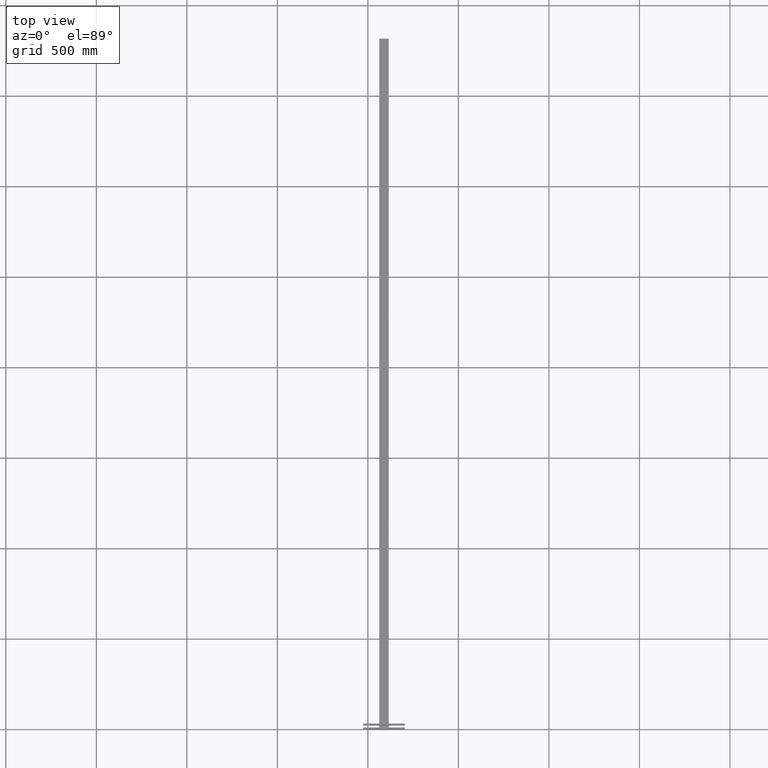
[diagram: clean part render]
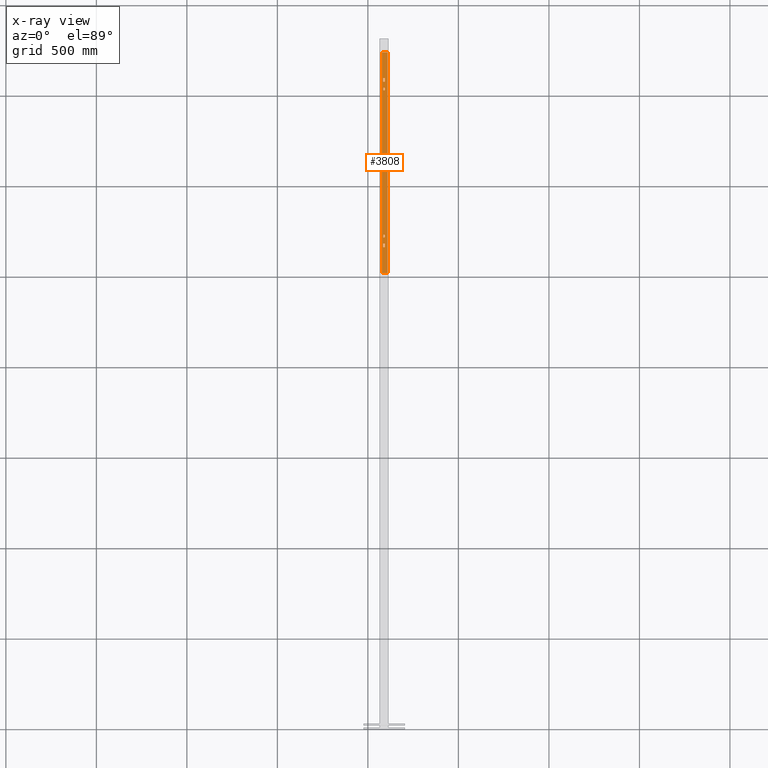
[diagram: x-ray — body ghosted, one internal face saturated and labeled with its STEP entity id]
A machine part, top view, then the same camera in x-ray: the body is ghosted and one INTERNAL B-rep face — a face not visible from any outside direction — is saturated and labeled: STEP entity #3808.
In plain terms, the highlighted planar face has unit normal (-0, -0, -1).
Its self-contained STEP definition (entity closure, byte-faithful):
#3091=CARTESIAN_POINT('',(0.0,0.0,24.0));
#3092=VERTEX_POINT('',#3091);
#3099=CARTESIAN_POINT('',(0.0,1.250000000000000,24.0));
#3100=VERTEX_POINT('',#3099);
#3101=CARTESIAN_POINT('',(0.0,1.250000000000000,24.0));
#3102=DIRECTION('',(0.0,-1.0,0.0));
#3103=VECTOR('',#3102,1.250000000000000);
#3104=LINE('',#3101,#3103);
#3105=EDGE_CURVE('',#3100,#3092,#3104,.T.);
#3144=CARTESIAN_POINT('',(0.0,0.0,-24.0));
#3145=VERTEX_POINT('',#3144);
#3152=CARTESIAN_POINT('',(0.0,0.0,24.0));
#3153=DIRECTION('',(0.0,0.0,-1.0));
#3154=VECTOR('',#3153,48.0);
#3155=LINE('',#3152,#3154);
#3156=EDGE_CURVE('',#3092,#3145,#3155,.T.);
#3177=CARTESIAN_POINT('',(0.0,0.531250000000000,-17.781250000000000));
#3178=VERTEX_POINT('',#3177);
#3185=CARTESIAN_POINT('',(0.0,0.531250000000000,-18.218750000000004));
#3186=VERTEX_POINT('',#3185);
#3187=CARTESIAN_POINT('',(0.0,0.531250000000000,-18.218750000000000));
#3188=DIRECTION('',(0.0,0.0,1.0));
#3189=VECTOR('',#3188,0.437500000000000);
#3190=LINE('',#3187,#3189);
#3191=EDGE_CURVE('',#3186,#3178,#3190,.T.);
#3217=CARTESIAN_POINT('',(0.0,0.968750000000000,-18.218750000000004));
#3218=VERTEX_POINT('',#3217);
#3219=CARTESIAN_POINT('',(0.0,0.750000000000000,-18.218750000000000));
#3220=DIRECTION('',(-1.0,0.0,0.0));
#3221=DIRECTION('',(0.0,-1.0,0.0));
#3222=AXIS2_PLACEMENT_3D('',#3219,#3220,#3221);
#3223=CIRCLE('',#3222,0.218750000000000);
#3224=EDGE_CURVE('',#3218,#3186,#3223,.T.);
#3249=CARTESIAN_POINT('',(0.0,0.968750000000000,-17.781250000000000));
#3250=VERTEX_POINT('',#3249);
#3251=CARTESIAN_POINT('',(0.0,0.968750000000000,-17.781250000000000));
#3252=DIRECTION('',(0.0,0.0,-1.0));
#3253=VECTOR('',#3252,0.437500000000004);
#3254=LINE('',#3251,#3253);
#3255=EDGE_CURVE('',#3250,#3218,#3254,.T.);
#3279=CARTESIAN_POINT('',(0.0,0.750000000000000,-17.781250000000000));
#3280=DIRECTION('',(-1.0,0.0,0.0));
#3281=DIRECTION('',(0.0,1.0,0.0));
#3282=AXIS2_PLACEMENT_3D('',#3279,#3280,#3281);
#3283=CIRCLE('',#3282,0.218750000000000);
#3284=EDGE_CURVE('',#3178,#3250,#3283,.T.);
#3305=CARTESIAN_POINT('',(0.0,0.968750000000000,17.781250000000000));
#3306=VERTEX_POINT('',#3305);
#3313=CARTESIAN_POINT('',(0.0,0.968750000000000,18.218750000000004));
#3314=VERTEX_POINT('',#3313);
#3315=CARTESIAN_POINT('',(0.0,0.968750000000000,18.218750000000000));
#3316=DIRECTION('',(0.0,0.0,-1.0));
#3317=VECTOR('',#3316,0.437500000000000);
#3318=LINE('',#3315,#3317);
#3319=EDGE_CURVE('',#3314,#3306,#3318,.T.);
#3345=CARTESIAN_POINT('',(0.0,0.531250000000000,18.218750000000004));
#3346=VERTEX_POINT('',#3345);
#3347=CARTESIAN_POINT('',(0.0,0.750000000000000,18.218750000000004));
#3348=DIRECTION('',(-1.0,0.0,0.0));
#3349=DIRECTION('',(0.0,1.0,0.0));
#3350=AXIS2_PLACEMENT_3D('',#3347,#3348,#3349);
#3351=CIRCLE('',#3350,0.218750000000000);
#3352=EDGE_CURVE('',#3346,#3314,#3351,.T.);
#3377=CARTESIAN_POINT('',(0.0,0.531250000000000,17.781250000000000));
#3378=VERTEX_POINT('',#3377);
#3379=CARTESIAN_POINT('',(0.0,0.531250000000000,17.781250000000000));
#3380=DIRECTION('',(0.0,0.0,1.0));
#3381=VECTOR('',#3380,0.437500000000004);
#3382=LINE('',#3379,#3381);
#3383=EDGE_CURVE('',#3378,#3346,#3382,.T.);
#3407=CARTESIAN_POINT('',(0.0,0.750000000000000,17.781250000000004));
#3408=DIRECTION('',(-1.0,0.0,0.0));
#3409=DIRECTION('',(0.0,-1.0,0.0));
#3410=AXIS2_PLACEMENT_3D('',#3407,#3408,#3409);
#3411=CIRCLE('',#3410,0.218750000000000);
#3412=EDGE_CURVE('',#3306,#3378,#3411,.T.);
#3434=CARTESIAN_POINT('',(0.0,0.906250000000000,-15.843750000000000));
#3435=VERTEX_POINT('',#3434);
#3442=CARTESIAN_POINT('',(0.0,0.593750000000000,-15.843750000000000));
#3443=VERTEX_POINT('',#3442);
#3444=CARTESIAN_POINT('',(0.0,0.750000000000000,-15.843750000000000));
#3445=DIRECTION('',(-1.0,0.0,0.0));
#3446=DIRECTION('',(0.0,1.0,0.0));
#3447=AXIS2_PLACEMENT_3D('',#3444,#3445,#3446);
#3448=CIRCLE('',#3447,0.156250000000000);
#3449=EDGE_CURVE('',#3443,#3435,#3448,.T.);
#3474=CARTESIAN_POINT('',(0.0,0.593750000000000,-16.156250000000000));
#3475=VERTEX_POINT('',#3474);
#3476=CARTESIAN_POINT('',(0.0,0.593750000000000,-16.156250000000000));
#3477=DIRECTION('',(0.0,0.0,1.0));
#3478=VECTOR('',#3477,0.312500000000000);
#3479=LINE('',#3476,#3478);
#3480=EDGE_CURVE('',#3475,#3443,#3479,.T.);
#3506=CARTESIAN_POINT('',(0.0,0.906250000000000,-16.156250000000000));
#3507=VERTEX_POINT('',#3506);
#3508=CARTESIAN_POINT('',(0.0,0.750000000000000,-16.156250000000000));
#3509=DIRECTION('',(-1.0,0.0,0.0));
#3510=DIRECTION('',(0.0,-1.0,0.0));
#3511=AXIS2_PLACEMENT_3D('',#3508,#3509,#3510);
#3512=CIRCLE('',#3511,0.156250000000000);
#3513=EDGE_CURVE('',#3507,#3475,#3512,.T.);
#3536=CARTESIAN_POINT('',(0.0,0.906250000000000,-15.843750000000000));
#3537=DIRECTION('',(0.0,0.0,-1.0));
#3538=VECTOR('',#3537,0.312500000000000);
#3539=LINE('',#3536,#3538);
#3540=EDGE_CURVE('',#3435,#3507,#3539,.T.);
#3562=CARTESIAN_POINT('',(0.0,0.593750000000000,15.843750000000000));
#3563=VERTEX_POINT('',#3562);
#3570=CARTESIAN_POINT('',(0.0,0.906250000000000,15.843750000000000));
#3571=VERTEX_POINT('',#3570);
#3572=CARTESIAN_POINT('',(0.0,0.750000000000000,15.843750000000000));
#3573=DIRECTION('',(-1.0,0.0,0.0));
#3574=DIRECTION('',(0.0,-1.0,0.0));
#3575=AXIS2_PLACEMENT_3D('',#3572,#3573,#3574);
#3576=CIRCLE('',#3575,0.156250000000000);
#3577=EDGE_CURVE('',#3571,#3563,#3576,.T.);
#3602=CARTESIAN_POINT('',(0.0,0.906250000000000,16.156250000000000));
#3603=VERTEX_POINT('',#3602);
#3604=CARTESIAN_POINT('',(0.0,0.906250000000000,16.156250000000000));
#3605=DIRECTION('',(0.0,0.0,-1.0));
#3606=VECTOR('',#3605,0.312500000000000);
#3607=LINE('',#3604,#3606);
#3608=EDGE_CURVE('',#3603,#3571,#3607,.T.);
#3634=CARTESIAN_POINT('',(0.0,0.593750000000000,16.156250000000000));
#3635=VERTEX_POINT('',#3634);
#3636=CARTESIAN_POINT('',(0.0,0.750000000000000,16.156250000000000));
#3637=DIRECTION('',(-1.0,0.0,0.0));
#3638=DIRECTION('',(0.0,1.0,0.0));
#3639=AXIS2_PLACEMENT_3D('',#3636,#3637,#3638);
#3640=CIRCLE('',#3639,0.156250000000000);
#3641=EDGE_CURVE('',#3635,#3603,#3640,.T.);
#3664=CARTESIAN_POINT('',(0.0,0.593750000000000,15.843750000000000));
#3665=DIRECTION('',(0.0,0.0,1.0));
#3666=VECTOR('',#3665,0.312500000000000);
#3667=LINE('',#3664,#3666);
#3668=EDGE_CURVE('',#3563,#3635,#3667,.T.);
#3687=CARTESIAN_POINT('',(0.0,1.250000000000000,-24.0));
#3688=VERTEX_POINT('',#3687);
#3696=CARTESIAN_POINT('',(0.0,0.0,-24.0));
#3697=DIRECTION('',(0.0,1.0,0.0));
#3698=VECTOR('',#3697,1.250000000000000);
#3699=LINE('',#3696,#3698);
#3700=EDGE_CURVE('',#3145,#3688,#3699,.T.);
#3762=CARTESIAN_POINT('',(0.0,1.250000000000000,24.0));
#3763=DIRECTION('',(0.0,0.0,-1.0));
#3764=VECTOR('',#3763,48.0);
#3765=LINE('',#3762,#3764);
#3766=EDGE_CURVE('',#3100,#3688,#3765,.T.);
#3773=CARTESIAN_POINT('',(0.0,1.250000000000000,0.0));
#3774=DIRECTION('',(1.0,0.0,0.0));
#3775=DIRECTION('',(0.0,0.0,-1.0));
#3776=AXIS2_PLACEMENT_3D('',#3773,#3774,#3775);
#3777=PLANE('',#3776);
#3778=ORIENTED_EDGE('',*,*,#3105,.T.);
#3779=ORIENTED_EDGE('',*,*,#3156,.T.);
#3780=ORIENTED_EDGE('',*,*,#3700,.T.);
#3781=ORIENTED_EDGE('',*,*,#3766,.F.);
#3782=EDGE_LOOP('',(#3778,#3779,#3780,#3781));
#3783=FACE_OUTER_BOUND('',#3782,.T.);
#3784=ORIENTED_EDGE('',*,*,#3255,.T.);
#3785=ORIENTED_EDGE('',*,*,#3224,.T.);
#3786=ORIENTED_EDGE('',*,*,#3191,.T.);
#3787=ORIENTED_EDGE('',*,*,#3284,.T.);
#3788=EDGE_LOOP('',(#3784,#3785,#3786,#3787));
#3789=FACE_BOUND('',#3788,.T.);
#3790=ORIENTED_EDGE('',*,*,#3383,.T.);
#3791=ORIENTED_EDGE('',*,*,#3352,.T.);
#3792=ORIENTED_EDGE('',*,*,#3319,.T.);
#3793=ORIENTED_EDGE('',*,*,#3412,.T.);
#3794=EDGE_LOOP('',(#3790,#3791,#3792,#3793));
#3795=FACE_BOUND('',#3794,.T.);
#3796=ORIENTED_EDGE('',*,*,#3513,.T.);
#3797=ORIENTED_EDGE('',*,*,#3480,.T.);
#3798=ORIENTED_EDGE('',*,*,#3449,.T.);
#3799=ORIENTED_EDGE('',*,*,#3540,.T.);
#3800=EDGE_LOOP('',(#3796,#3797,#3798,#3799));
#3801=FACE_BOUND('',#3800,.T.);
#3802=ORIENTED_EDGE('',*,*,#3641,.T.);
#3803=ORIENTED_EDGE('',*,*,#3608,.T.);
#3804=ORIENTED_EDGE('',*,*,#3577,.T.);
#3805=ORIENTED_EDGE('',*,*,#3668,.T.);
#3806=EDGE_LOOP('',(#3802,#3803,#3804,#3805));
#3807=FACE_BOUND('',#3806,.T.);
#3808=ADVANCED_FACE('',(#3783,#3789,#3795,#3801,#3807),#3777,.T.);